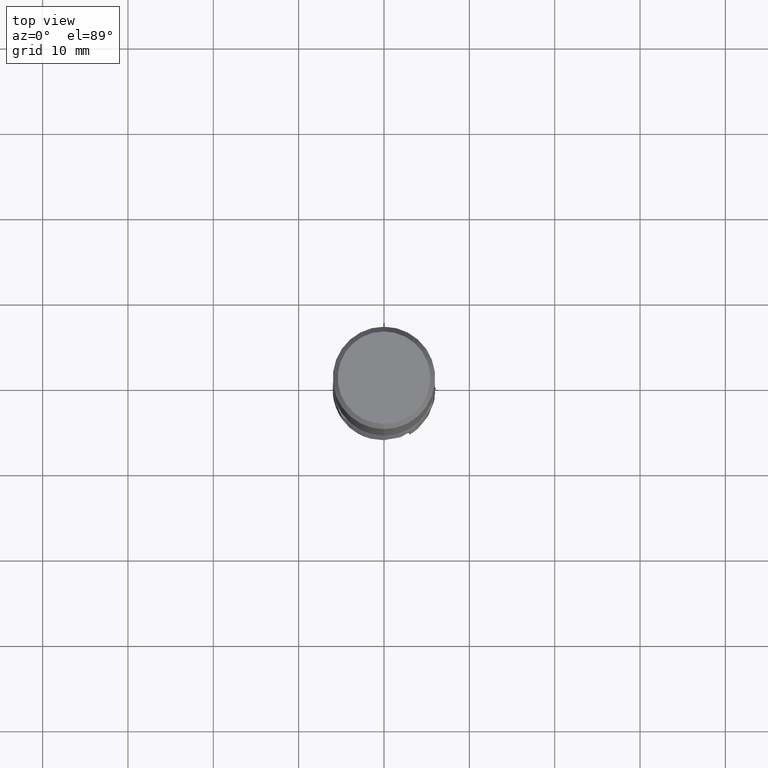
[diagram: clean part render]
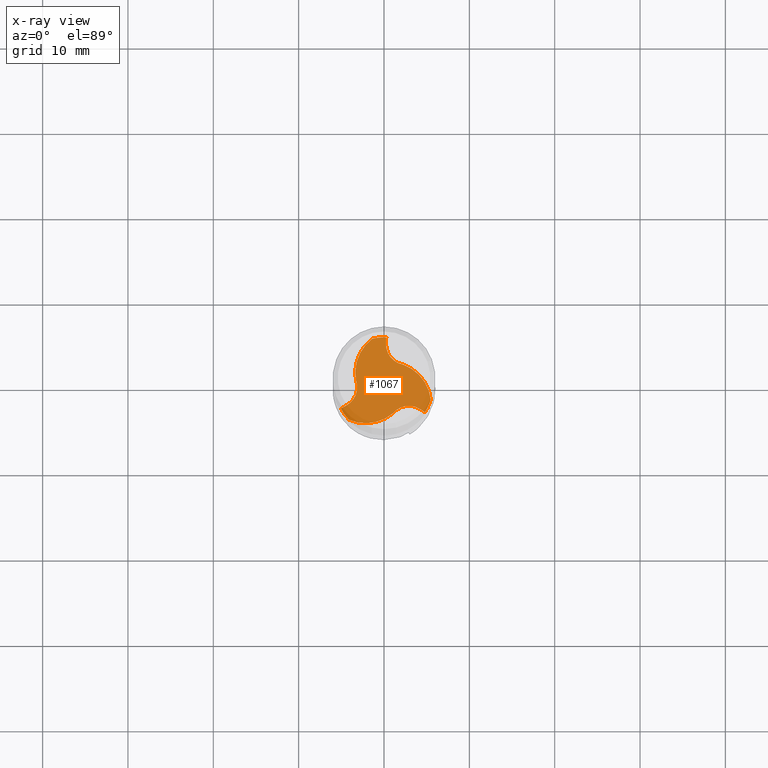
[diagram: x-ray — body ghosted, one internal face saturated and labeled with its STEP entity id]
A machine part, top view, then the same camera in x-ray: the body is ghosted and one INTERNAL B-rep face — a face not visible from any outside direction — is saturated and labeled: STEP entity #1067.
In plain terms, the highlighted planar face has unit normal (0, 0, -1).
Its self-contained STEP definition (entity closure, byte-faithful):
#457=EDGE_CURVE('',#657,#479,#1324,.T.);
#479=VERTEX_POINT('',#1349);
#527=VERTEX_POINT('',#1401);
#591=VERTEX_POINT('',#1470);
#627=EDGE_CURVE('',#651,#951,#1510,.T.);
#651=VERTEX_POINT('',#1535);
#657=VERTEX_POINT('',#1541);
#691=EDGE_CURVE('',#591,#1107,#1576,.T.);
#709=EDGE_CURVE('',#875,#591,#1594,.T.);
#725=VERTEX_POINT('',#1612);
#729=VERTEX_POINT('',#1616);
#741=EDGE_CURVE('',#1107,#725,#1629,.T.);
#867=EDGE_CURVE('',#1053,#975,#1769,.T.);
#873=EDGE_CURVE('',#951,#729,#1775,.T.);
#875=VERTEX_POINT('',#1777);
#877=EDGE_CURVE('',#479,#651,#1779,.T.);
#923=EDGE_CURVE('',#975,#527,#1830,.T.);
#951=VERTEX_POINT('',#1859);
#975=VERTEX_POINT('',#1883);
#1031=EDGE_CURVE('',#729,#1103,#1946,.T.);
#1053=VERTEX_POINT('',#1969);
#1067=ADVANCED_FACE('',(#1986),#1987,.T.);
#1103=VERTEX_POINT('',#2027);
#1105=EDGE_CURVE('',#527,#657,#2029,.T.);
#1107=VERTEX_POINT('',#2031);
#1129=EDGE_CURVE('',#1103,#875,#2053,.T.);
#1157=EDGE_CURVE('',#725,#1053,#2084,.T.);
#1324=CIRCLE('',#2264,2.44);
#1349=CARTESIAN_POINT('',(2.25915331935005,2.49753979524377,-55.9999999999993));
#1401=CARTESIAN_POINT('',(0.260524107690861,5.69399307971233,-56.0));
#1470=CARTESIAN_POINT('',(-5.061404709849,-2.62137604429779,-56.0000000000008));
#1510=CIRCLE('',#4060,5.69995);
#1535=CARTESIAN_POINT('',(5.47795040078649,-1.57527439166105,-56.0));
#1541=CARTESIAN_POINT('',(0.229446051388067,5.01475368383599,-55.9999999999993));
#1576=LINE('',#4252,#4253);
#1594=CIRCLE('',#4315,5.69995);
#1612=CARTESIAN_POINT('',(-3.29250956931337,0.7077142679818,-56.0000000000008));
#1616=CARTESIAN_POINT('',(4.22818105822456,-2.70608295121463,-55.999999999999));
#1629=CIRCLE('',#4359,2.44);
#1769=CIRCLE('',#4910,5.69995);
#1775=LINE('',#4933,#4934);
#1777=CARTESIAN_POINT('',(-4.10320284150475,-3.95640701191969,-56.0));
#1779=CIRCLE('',#4939,4.9608);
#1830=CIRCLE('',#5534,5.69995);
#1859=CARTESIAN_POINT('',(4.80088060215838,-3.0726170354145,-56.0));
#1883=CARTESIAN_POINT('',(-6.9888358090682E-016,5.69995,-56.0));
#1946=CIRCLE('',#5915,2.44);
#1969=CARTESIAN_POINT('',(-1.37474755928138,5.53168140358335,-56.0000000000008));
#1986=FACE_OUTER_BOUND('',#6275,.T.);
#1987=PLANE('',#6276);
#2027=CARTESIAN_POINT('',(1.0333562499637,-3.20525406321957,-55.999999999999));
#2029=LINE('',#6629,#6630);
#2031=CARTESIAN_POINT('',(-4.45762710961218,-2.30867073261533,-56.0000000000008));
#2053=CIRCLE('',#6680,4.9608);
#2084=CIRCLE('',#6779,4.9608);
#2264=AXIS2_PLACEMENT_3D('',#9263,#9264,#9265);
#4060=AXIS2_PLACEMENT_3D('',#9455,#9456,#9457);
#4252=CARTESIAN_POINT('',(-4.45762710961218,-2.30867073261533,-56.0000000000008));
#4253=VECTOR('',#9502,0.999999999999999);
#4315=AXIS2_PLACEMENT_3D('',#9507,#9508,#9509);
#4359=AXIS2_PLACEMENT_3D('',#9551,#9552,#9553);
#4910=AXIS2_PLACEMENT_3D('',#9745,#9746,#9747);
#4933=CARTESIAN_POINT('',(4.22818105822456,-2.70608295121463,-55.999999999999));
#4934=VECTOR('',#9748,0.999999999999999);
#4939=AXIS2_PLACEMENT_3D('',#9749,#9750,#9751);
#5534=AXIS2_PLACEMENT_3D('',#9803,#9804,#9805);
#5915=AXIS2_PLACEMENT_3D('',#9896,#9897,#9898);
#6275=EDGE_LOOP('',(#9943,#9944,#9945,#9946,#9947,#9948,#9949,#9950,#9951,#9952,#9953,#9954,#9955));
#6276=AXIS2_PLACEMENT_3D('',#9956,#9957,#9958);
#6629=CARTESIAN_POINT('',(0.229446051388067,5.01475368383599,-55.9999999999993));
#6630=VECTOR('',#10013,0.999999999999999);
#6680=AXIS2_PLACEMENT_3D('',#10019,#10020,#10021);
#6779=AXIS2_PLACEMENT_3D('',#10061,#10062,#10063);
#9263=CARTESIAN_POINT('',(2.66689604921095,4.90323010515761,-55.9999999999993));
#9264=DIRECTION('',(3.04964387076723E-015,2.22044604925032E-016,1.0));
#9265=DIRECTION('',(-0.167107676151554,-0.985938651525148,7.28541258691962E-016));
#9455=CARTESIAN_POINT('',(0.0,0.0,-56.0));
#9456=DIRECTION('',(0.0,0.0,-1.0));
#9457=DIRECTION('',(0.0,1.0,0.0));
#9502=DIRECTION('',(0.887973527811471,0.459894568250213,2.77555756156289E-015));
#9507=CARTESIAN_POINT('',(0.0,0.0,-56.0));
#9508=DIRECTION('',(0.0,0.0,-1.0));
#9509=DIRECTION('',(0.0,1.0,0.0));
#9551=CARTESIAN_POINT('',(-5.57976985626725,-0.142015324707216,-56.0000000000008));
#9552=DIRECTION('',(-6.66133814775094E-016,-4.413136522885E-015,1.0));
#9553=DIRECTION('',(0.937401756869519,0.34824983304797,2.16130906559297E-015));
#9745=CARTESIAN_POINT('',(0.0,0.0,-56.0));
#9746=DIRECTION('',(0.0,0.0,-1.0));
#9747=DIRECTION('',(0.0,1.0,0.0));
#9748=DIRECTION('',(-0.842267143072897,0.539060348847715,1.11022302462516E-016));
#9749=CARTESIAN_POINT('',(0.551752430205312,-2.16017625919191,-55.9999999999993));
#9750=DIRECTION('',(-3.04964387076723E-015,-2.22044604925032E-016,-1.0));
#9751=DIRECTION('',(0.344178537563442,0.938904219971713,-1.25810058411604E-015));
#9803=CARTESIAN_POINT('',(0.0,0.0,-56.0));
#9804=DIRECTION('',(0.0,0.0,-1.0));
#9805=DIRECTION('',(0.0,1.0,0.0));
#9896=CARTESIAN_POINT('',(2.91287380705673,-4.76121478044442,-55.999999999999));
#9897=DIRECTION('',(-2.38697950294409E-015,-3.83026943495679E-015,1.0));
#9898=DIRECTION('',(-0.770294080717991,0.637688818477183,6.03843808513858E-016));
#9943=ORIENTED_EDGE('',*,*,#1105,.T.);
#9944=ORIENTED_EDGE('',*,*,#457,.T.);
#9945=ORIENTED_EDGE('',*,*,#877,.T.);
#9946=ORIENTED_EDGE('',*,*,#627,.T.);
#9947=ORIENTED_EDGE('',*,*,#873,.T.);
#9948=ORIENTED_EDGE('',*,*,#1031,.T.);
#9949=ORIENTED_EDGE('',*,*,#1129,.T.);
#9950=ORIENTED_EDGE('',*,*,#709,.T.);
#9951=ORIENTED_EDGE('',*,*,#691,.T.);
#9952=ORIENTED_EDGE('',*,*,#741,.T.);
#9953=ORIENTED_EDGE('',*,*,#1157,.T.);
#9954=ORIENTED_EDGE('',*,*,#867,.T.);
#9955=ORIENTED_EDGE('',*,*,#923,.T.);
#9956=CARTESIAN_POINT('',(0.0,2.849975,-56.0));
#9957=DIRECTION('',(0.0,0.0,-1.0));
#9958=DIRECTION('',(0.0,1.0,0.0));
#10013=DIRECTION('',(-0.0457063847386009,-0.998954917097928,1.0547118733939E-015));
#10019=CARTESIAN_POINT('',(-2.14664373221994,0.602256508441684,-55.999999999999));
#10020=DIRECTION('',(2.38697950294409E-015,3.83026943495679E-015,-1.0));
#10021=DIRECTION('',(0.641025637434215,-0.767519466953157,-1.40969129758787E-015));
#10061=CARTESIAN_POINT('',(1.59489130201489,1.55791975075627,-56.0000000000008));
#10062=DIRECTION('',(6.66133814775094E-016,4.413136522885E-015,-1.0));
#10063=DIRECTION('',(-0.985204174997633,-0.171384753018565,-1.41262212843537E-015));